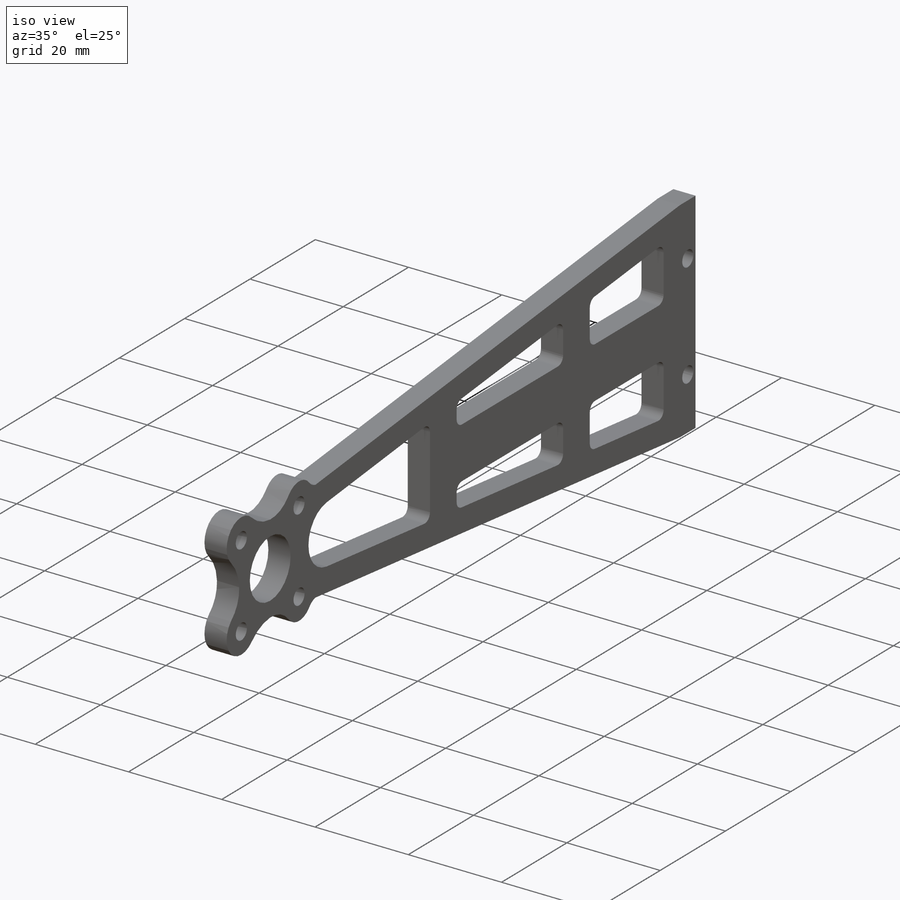
[diagram: iso view]
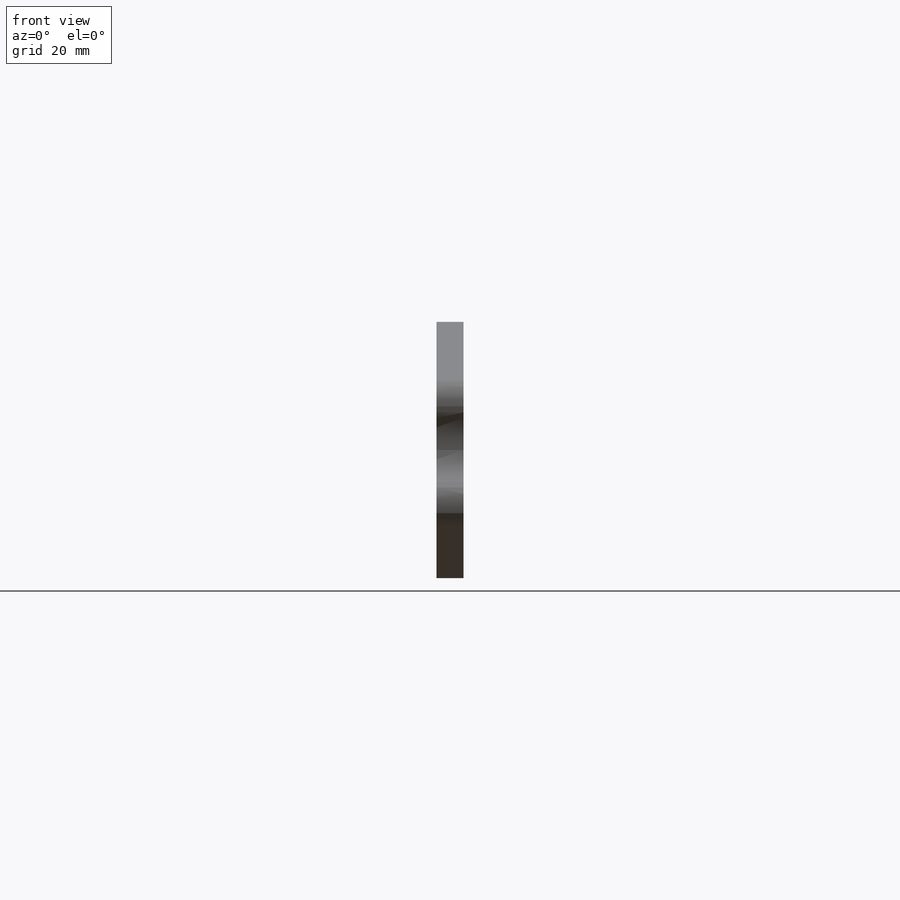
[diagram: front view]
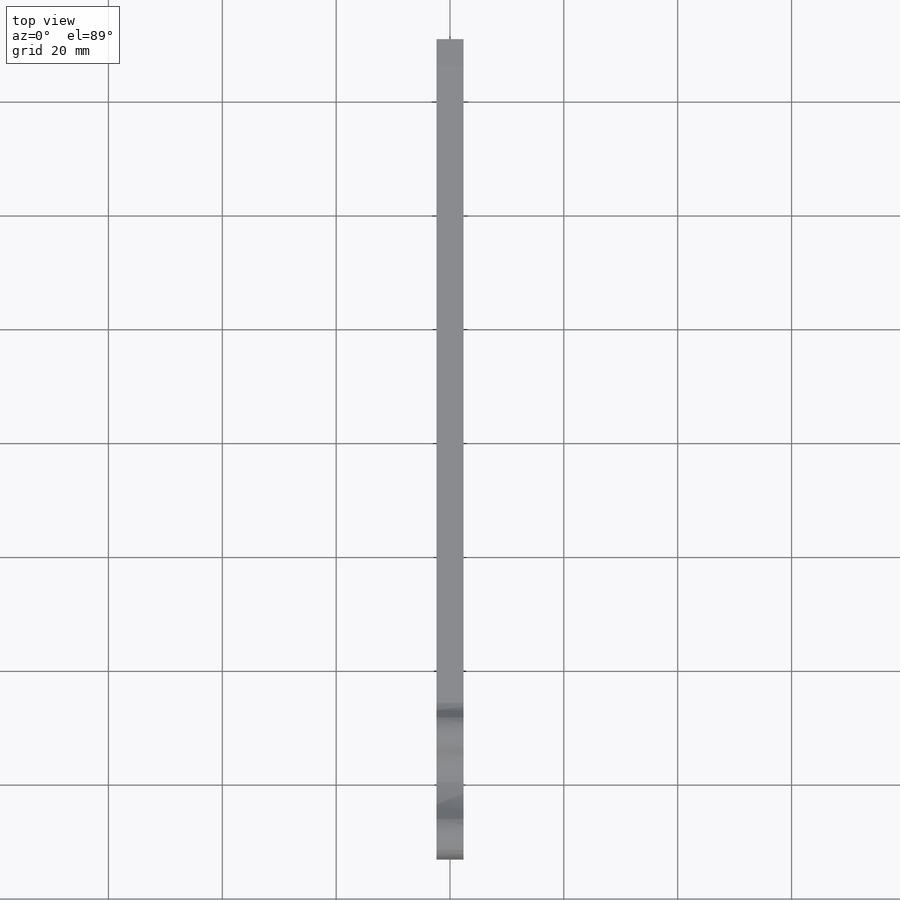
[diagram: top view]
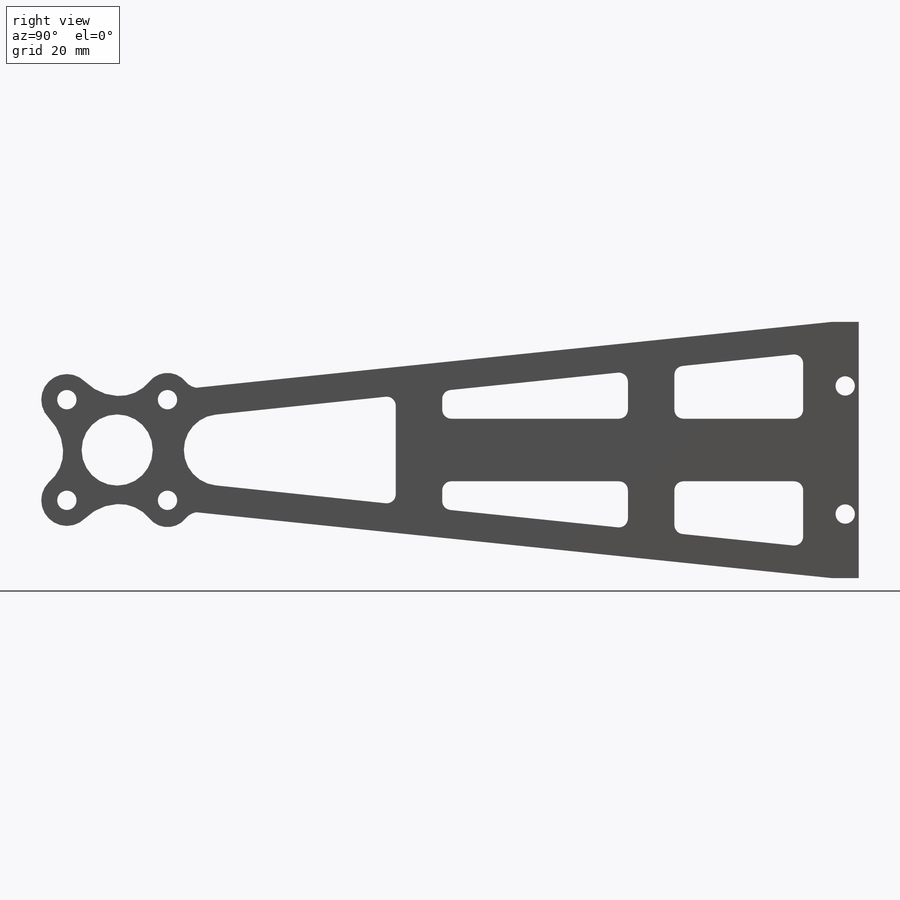
[diagram: right view]
SOLIDWORKS PART (.sldprt)
format: sldprt  version: not decoded by parser v0  size: 437,760 bytes
history: native  units: mm
features: sketch x5, hole x2, material x1, extrude x1 (+13 scaffold rows collapsed)
feature tree (22):
  scaffold x13  (default folders/planes/origin — collapsed)
  material  "6061-T6 (SS)"
  sketch  "Sketch1"  dims[c1.D1=2.0mm c1.D3=3.0mm c2.D1=1.5875mm c2.D2=1.5875mm c2.D7=4.0mm c2.D8=6.25mm c3.D7=1.5875mm c3.D1=100.0mm c4.D1=45.0deg c5.D1=12.5mm c5.D2=12.5mm c5.D3=12.5mm c5.D4=12.5mm c6.D1=6.0mm c6.D2=6.0mm c7.D1=6.0mm c7.D2=6.0mm c8.D1=5.0mm c8.D2=5.0mm c8.D3=5.0mm c9.D1=5.0mm c9.D2=5.0mm c9.D3=5.0mm c10.D1=4.5mm c10.D2=4.5mm c11.D1=4.5mm c11.D2=4.5mm c12.D1=11.25mm c13.D1=5.0mm c13.D2=5.0mm c14.D1=32.625mm c14.D2=32.625mm c15.D1=16.3125mm c15.D2=16.3125mm c15.D3=16.3125mm c16.D1=~8.15625mm c16.D2=~8.15625mm c16.D3=~8.15625mm c16.D4=~8.15625mm c16.D5=~8.15625mm c16.D6=~8.15625mm c17.D1=12.5mm c17.D3=4.763mm c17.D4=130.263mm c17.D5=45.0mm c17.D6=~143.601894mm]
  extrude  "Boss-Extrude1"  Depth=4.763mm
  hole  "M3 Clearance Hole1"  Diameter=3.2mm Depth=4.763mm
  sketch  "Sketch3"  dims[c1.D1=11.25mm c1.D2=11.25mm c2.D1=11.25mm c2.D2=11.25mm]
  sketch  "Sketch2"  dims[hole-wizard template sketch: 61 standard entries collapsed; hole parameters above]
  hole  "M3 Clearance Hole2"  Diameter=3.2mm Depth=4.763mm
  sketch  "Sketch5"  dims[c1.D1=12.5mm c2.D1=135.0deg c3.D1=12.5mm c4.D1=45.0deg c5.D1=12.5mm c6.D1=135.0deg c7.D1=12.5mm c7.D2=12.5mm c7.D3=12.5mm c7.D4=12.5mm c8.D1=12.5mm c8.D2=~17.67767mm c8.D3=25.0mm]
  sketch  "Sketch4"  dims[hole-wizard template sketch: 61 standard entries collapsed; hole parameters above]
decode coverage: 8 of 8 modeling features carry decoded parameters
note: ~ marks probable driven/reference dimensions
note: suppression state not decoded; provenance and decode notes live in map.json
